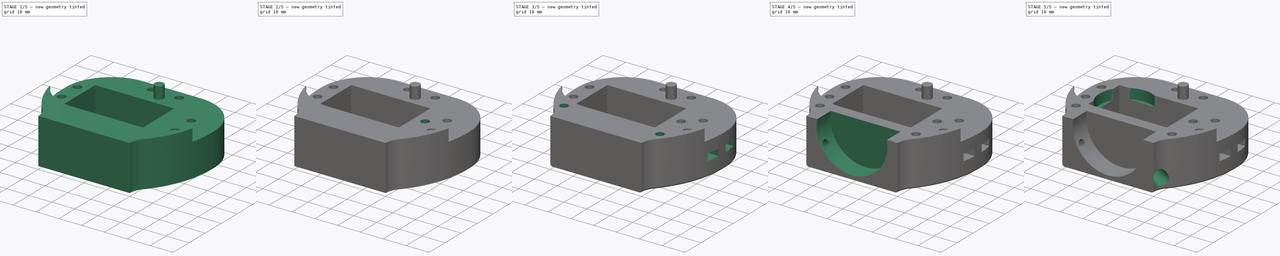
[diagram: build sequence overview — one tinted view per stage of 5, left to right]
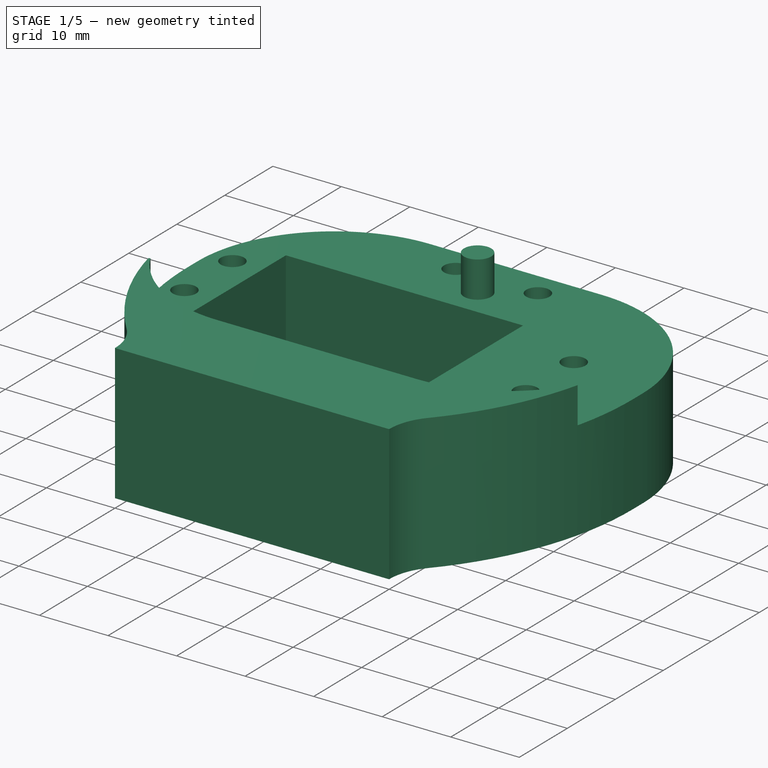
[diagram: stage 1 of 5 — iso view after this stage's code; geometry added in this stage tinted green]
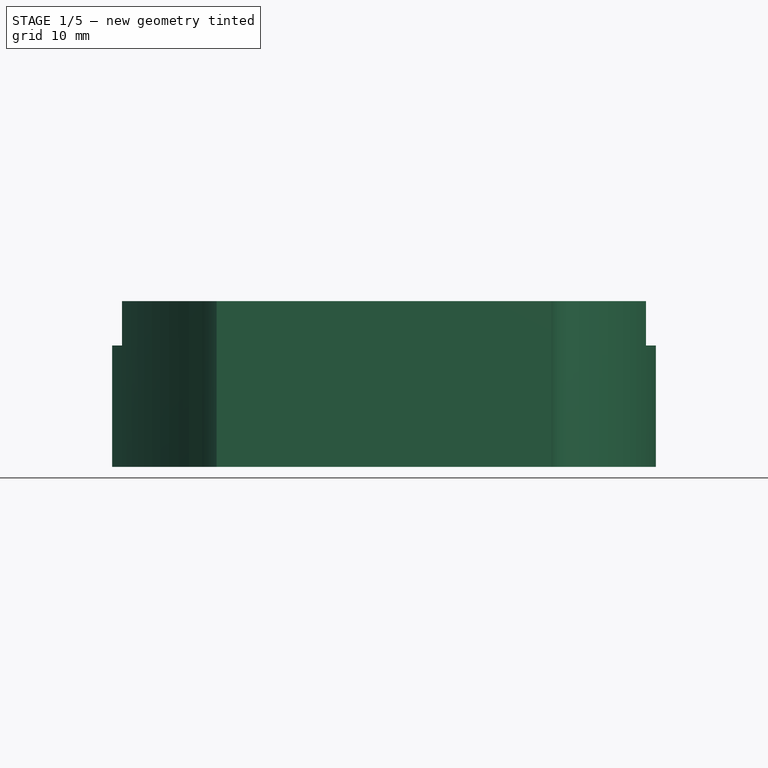
[diagram: stage 1 of 5 — front view after this stage's code; geometry added in this stage tinted green]
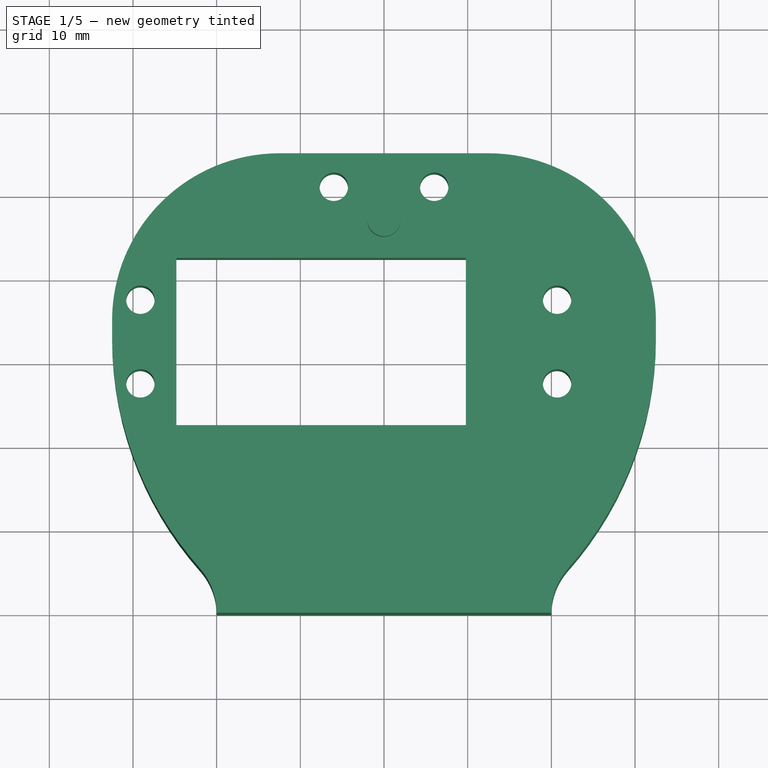
[diagram: stage 1 of 5 — top view after this stage's code; geometry added in this stage tinted green]
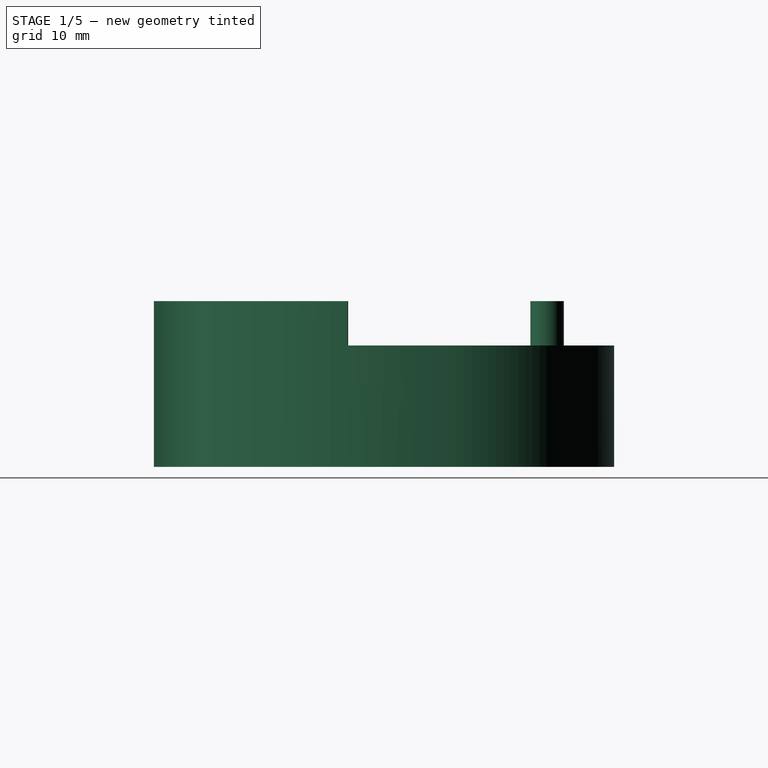
[diagram: stage 1 of 5 — right view after this stage's code; geometry added in this stage tinted green]
FCSTD DOCUMENT  (FreeCAD 0.19R24276 (Git))
Label: GripperBot
License: All rights reserved
LicenseURL: http://en.wikipedia.org/wiki/All_rights_reserved
objects: Sketcher::SketchObject×13, PartDesign::Pocket×12, PartDesign::Line×11, PartDesign::CoordinateSystem×6, PartDesign::Plane×3, Spreadsheet::Sheet×1, PartDesign::Pad×1, PartDesign::Chamfer×1, PartDesign::Fillet×1, PartDesign::Mirrored×1, PartDesign::Body×1
note: 65 computed .brp shape members not serialized (recipe doc carries the construction recipe); baked Part::Feature solids carry a one-line shape summary decoded from their .brp

FEATURE [Sketcher::SketchObject] Sketch
  FullyConstrained = true
  MapMode = 5
  Support = -> [XY_Plane]
  expr: Constraints[32] = Spreadsheet.M3BoltBodyRadius
  sketch-geometry (20):
    g0: LineSegment StartX=-20 StartY=0 StartZ=0 EndX=20 EndY=1e-15 EndZ=0
    g1: LineSegment StartX=-24.815 StartY=42.5 StartZ=0 EndX=9.785 EndY=42.5 EndZ=0
    g2: LineSegment StartX=9.785 StartY=42.5 StartZ=0 EndX=9.785 EndY=22.5 EndZ=0
    g3: LineSegment StartX=9.785 StartY=22.5 StartZ=0 EndX=-24.815 EndY=22.5 EndZ=0
    g4: LineSegment StartX=-24.815 StartY=22.5 StartZ=0 EndX=-24.815 EndY=42.5 EndZ=0
    g5: ArcOfCircle CenterX=27.9696 CenterY=0 CenterZ=0 NormalX=0 NormalY=0 NormalZ=1 AngleXU=0 Radius=7.9696 StartAngle=2.41742 EndAngle=3.14159
    g6: ArcOfCircle CenterX=-27.9696 CenterY=0 CenterZ=0 NormalX=0 NormalY=0 NormalZ=1 AngleXU=0 Radius=7.9696 StartAngle=0 EndAngle=0.724175
    g7: Circle CenterX=-29.115 CenterY=37.5 CenterZ=0 NormalX=0 NormalY=0 NormalZ=1 AngleXU=0 Radius=1.7
    g8: Circle CenterX=-29.115 CenterY=27.5 CenterZ=0 NormalX=0 NormalY=0 NormalZ=1 AngleXU=0 Radius=1.7
    g9: Circle CenterX=20.685 CenterY=37.5 CenterZ=0 NormalX=0 NormalY=0 NormalZ=1 AngleXU=0 Radius=1.7
    g10: Circle CenterX=20.685 CenterY=27.5 CenterZ=0 NormalX=0 NormalY=0 NormalZ=1 AngleXU=0 Radius=1.7
    g11: Circle CenterX=-6 CenterY=51 CenterZ=0 NormalX=0 NormalY=0 NormalZ=1 AngleXU=0 Radius=1.7
    g12: Circle CenterX=6 CenterY=51 CenterZ=0 NormalX=0 NormalY=0 NormalZ=1 AngleXU=0 Radius=1.7
    g13: LineSegment StartX=-12.5 StartY=55 StartZ=0 EndX=12.5 EndY=55 EndZ=0
    g14: ArcOfCircle CenterX=12.5 CenterY=35 CenterZ=0 NormalX=0 NormalY=0 NormalZ=1 AngleXU=0 Radius=20 StartAngle=0 EndAngle=1.5708
    g15: LineSegment StartX=32.5 StartY=35 StartZ=0 EndX=32.5 EndY=33 EndZ=0
    g16: ArcOfCircle CenterX=-9.3404 CenterY=33 CenterZ=0 NormalX=0 NormalY=0 NormalZ=1 AngleXU=0 Radius=41.8404 StartAngle=5.55901 EndAngle=6.28319
    g17: LineSegment StartX=-32.5 StartY=35 StartZ=0 EndX=-32.5 EndY=33 EndZ=0
    g18: ArcOfCircle CenterX=-12.5 CenterY=35 CenterZ=0 NormalX=0 NormalY=0 NormalZ=1 AngleXU=0 Radius=20 StartAngle=1.5708 EndAngle=3.14159
    g19: ArcOfCircle CenterX=9.3404 CenterY=33 CenterZ=0 NormalX=0 NormalY=0 NormalZ=1 AngleXU=0 Radius=41.8404 StartAngle=3.14159 EndAngle=3.86577
  constraints (56):
    c: PointOnObject(g0,g-1)
    c: Symmetric(g0,g0,g-2)
    c: Coincident(g1,g2)
    c: Coincident(g2,g3)
    c: Coincident(g3,g4)
    c: Coincident(g4,g1)
    c: Horizontal(g1)
    c: Horizontal(g3)
    c: Vertical(g2)
    c: Vertical(g4)
    c: DistanceY(g-1,g2) = 22.5
    c: DistanceX(g3,g3) = 34.6
    c: DistanceX(g-1,g2) = 9.785
    c: DistanceY(g2,g2) = 20
    c: PointOnObject(g5,g-1)
    c: Coincident(g5,g0)
    c: PointOnObject(g6,g-1)
    c: Coincident(g6,g0)
    c: Equal(g11,g12)
    c: Equal(g12,g9)
    c: Equal(g9,g10)
    c: Equal(g10,g8)
    c: Equal(g8,g7)
    c: DistanceX(g7,g8) = 0
    c: DistanceX(g9,g10) = 0
    c: Symmetric(g11,g12,g-2)
    c: DistanceX(g11,g12) = 12
    c: DistanceY(g8,g7) = 10
    c: DistanceY(g10,g9) = 10
    c: DistanceX(g8,g10) = 49.8
    c: DistanceY(g3,g8) = 5
    c: DistanceY(g2,g10) = 5
    c: Radius(g8) = 1.7
    c: Horizontal(g13)
    c: DistanceY(g12,g13) = 4
    c: Radius(g14) = 20
    c: Tangent(g14,g13) = 1.5708
    c: DistanceX(g0,g0) = 40
    c: Vertical(g15)
    c: Tangent(g15,g14) = 1.5708
    c: Tangent(g16,g5) = 1.5708
    c: Tangent(g16,g15) = 1.5708
    c: DistanceY(g15,g15) = 2
    c: Vertical(g17)
    c: Equal(g17,g15)
    c: Equal(g18,g14)
    c: Coincident(g18,g13)
    c: Symmetric(g18,g14,g-2)
    c: Tangent(g18,g17) = -1.5708
    c: Tangent(g19,g6) = 1.5708
    c: Tangent(g19,g17) = -1.5708
    c: Equal(g6,g5)
    c: DistanceX(g6,g-1) = 22
    c: DistanceX(g17,g14) = 65
    c: DistanceY(g-1,g13) = 55
    c: DistanceX(g8,g3) = 4.3
FEATURE [Spreadsheet::Sheet] Spreadsheet
  cells = A2=M3BoltBodyRadius; B2(M3BoltBodyRadius)=1.7; A3=M3BoltHeadRadius; B3(M3BoltHeadRadius)=2.95; A4=M3NutCircumradius; B4(M3NutCircumradius)=3.35; A5=M3NutThickness; B5(M3NutThickness)=3; A6=Bearing655ZZBodyRadius; B6(Bearing655ZZBodyRadius)=8.199999999999999
FEATURE [PartDesign::Pad] Pad
  Direction = (1,1,1)
  Length = 19.8
  Length2 = 100
  Profile = -> Sketch
  Refine = true
  Type = 0
FEATURE [Sketcher::SketchObject] Sketch001
  FullyConstrained = true
  MapMode = 5
  Placement = pos=(0,0,19.8) rot=(0,0,1;0rad)
  Support = -> [Pad]
  sketch-geometry (5):
    g0: ArcOfCircle CenterX=-14.5 CenterY=32.5 CenterZ=0 NormalX=0 NormalY=0 NormalZ=1 AngleXU=0 Radius=19 StartAngle=3.12167 EndAngle=4.71239
    g1: ArcOfCircle CenterX=14.5 CenterY=32.5 CenterZ=0 NormalX=0 NormalY=0 NormalZ=1 AngleXU=0 Radius=19 StartAngle=4.71239 EndAngle=6.30311
    g2: ArcOfCircle CenterX=0 CenterY=70 CenterZ=0 NormalX=0 NormalY=0 NormalZ=1 AngleXU=0 Radius=50 StartAngle=5.4465 EndAngle=10.2615
    g3: LineSegment StartX=-14.5 StartY=13.5 StartZ=0 EndX=14.5 EndY=13.5 EndZ=0
    g4: Circle CenterX=0 CenterY=47 CenterZ=0 NormalX=0 NormalY=0 NormalZ=1 AngleXU=0 Radius=2
  constraints (15):
    c: PointOnObject(g2,g-2)
    c: Coincident(g2,g0)
    c: Coincident(g2,g1)
    c: Symmetric(g0,g1,g-2)
    c: Horizontal(g3)
    c: Tangent(g3,g1) = -1.5708
    c: Tangent(g3,g0) = -1.5708
    c: Radius(g1) = 19
    c: PointOnObject(g4,g-2)
    c: Radius(g4) = 2
    c: DistanceY(g-1,g4) = 47
    c: DistanceX(g-1,g1) = 14.5
    c: Radius(g2) = 50
    c: DistanceY(g-1,g1) = 32.5
    c: DistanceY(g-1,g2) = 70
FEATURE [PartDesign::Pocket] Pocket
  BaseFeature = -> Pad
  Length = 5.3
  Length2 = 100
  Profile = -> Sketch001
  Refine = true
  Type = 0
FEATURE [PartDesign::Chamfer] Chamfer
  Angle = 45
  Base = -> Pocket [Edge56,Edge48]
  BaseFeature = -> Pocket
  ChamferType = 0
  FlipDirection = false
  Refine = true
  Size = 1
  Size2 = 1
  SupportTransform = false
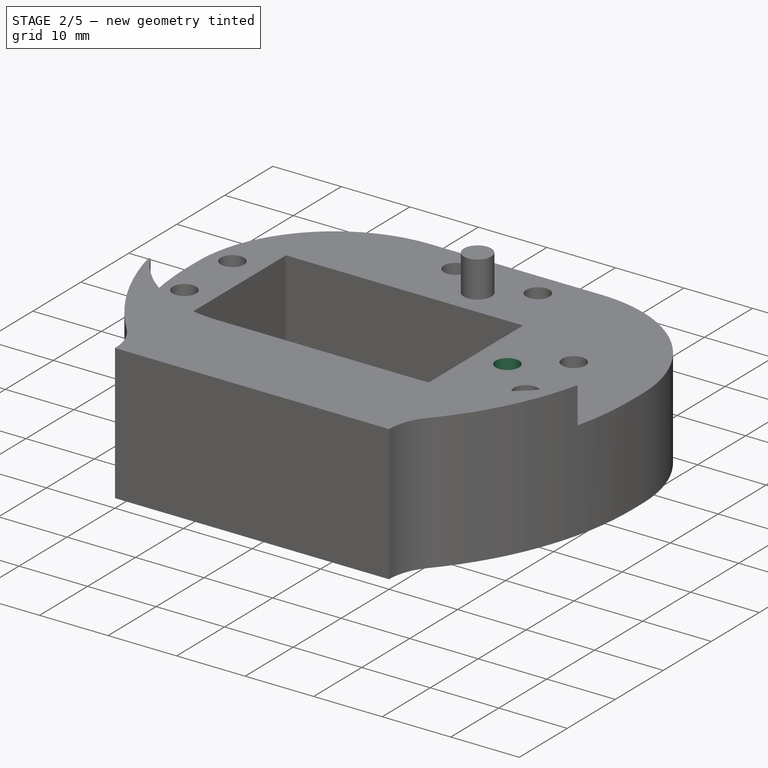
[diagram: stage 2 of 5 — iso view after this stage's code; geometry added in this stage tinted green]
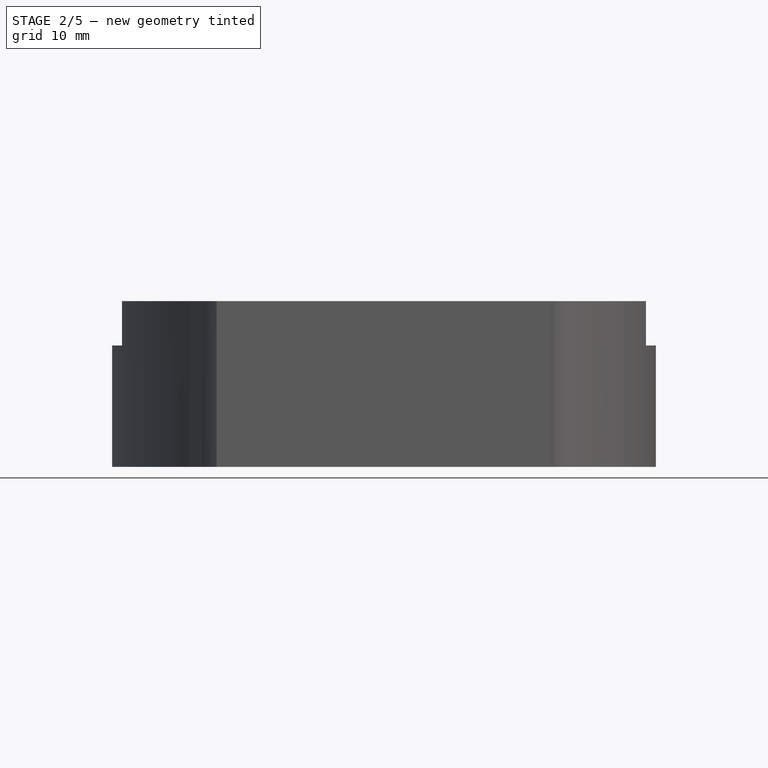
[diagram: stage 2 of 5 — front view after this stage's code; geometry added in this stage tinted green]
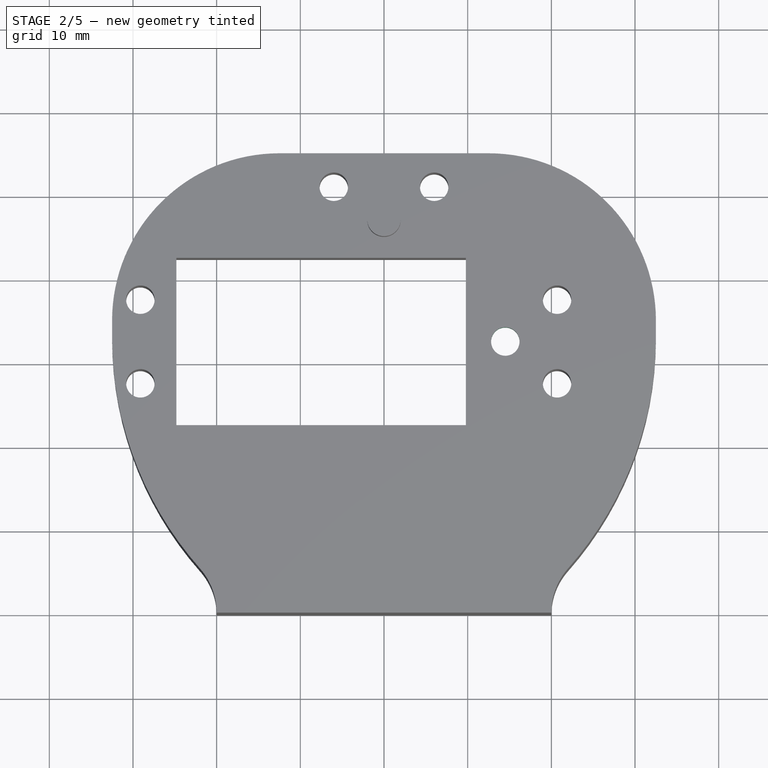
[diagram: stage 2 of 5 — top view after this stage's code; geometry added in this stage tinted green]
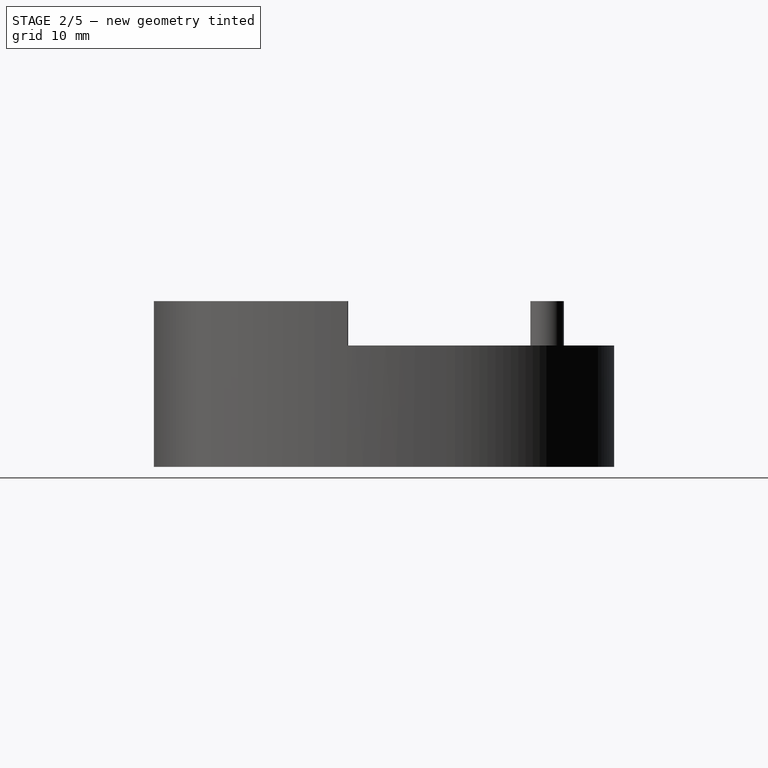
[diagram: stage 2 of 5 — right view after this stage's code; geometry added in this stage tinted green]
FEATURE [Sketcher::SketchObject] Sketch002
  ExternalGeometry = -> [Chamfer]
  FullyConstrained = true
  MapMode = 5
  Placement = pos=(0,0,0) rot=(1,0,0;3.14159rad)
  Support = -> [Chamfer]
  sketch-geometry (4):
    g0: LineSegment StartX=9.785 StartY=-22.5 StartZ=0 EndX=16.185 EndY=-22.5 EndZ=0
    g1: LineSegment StartX=16.185 StartY=-22.5 StartZ=0 EndX=16.185 EndY=-42.5 EndZ=0
    g2: LineSegment StartX=16.185 StartY=-42.5 StartZ=0 EndX=9.785 EndY=-42.5 EndZ=0
    g3: LineSegment StartX=9.785 StartY=-42.5 StartZ=0 EndX=9.785 EndY=-22.5 EndZ=0
  constraints (10):
    c: Coincident(g0,g1)
    c: Coincident(g1,g2)
    c: Coincident(g2,g3)
    c: Coincident(g3,g0)
    c: Horizontal(g0)
    c: Horizontal(g2)
    c: Vertical(g1)
    c: Coincident(g0,g-3)
    c: Coincident(g2,g-3)
    c: DistanceX(g2,g2) = 6.4
FEATURE [PartDesign::Pocket] Pocket001
  BaseFeature = -> Chamfer
  Length = 7.5
  Length2 = 100
  Profile = -> Sketch002
  Refine = true
  Type = 0
FEATURE [Sketcher::SketchObject] Sketch003
  ExternalGeometry = -> [Pocket001]
  FullyConstrained = true
  MapMode = 5
  Placement = pos=(0,0,14.5) rot=(0,0,1;0rad)
  Support = -> [Pocket001]
  expr: Constraints[2] = Spreadsheet.M3BoltBodyRadius
  sketch-geometry (1):
    g0: Circle CenterX=14.5 CenterY=32.5 CenterZ=0 NormalX=0 NormalY=0 NormalZ=1 AngleXU=0 Radius=1.7
  constraints (3):
    c: DistanceX(g0,g-3) = 6.185
    c: DistanceY(g0,g-3) = 5
    c: Radius(g0) = 1.7
FEATURE [PartDesign::Pocket] Pocket002
  BaseFeature = -> Pocket001
  Length = 5
  Length2 = 100
  Profile = -> Sketch003
  Refine = true
  Type = 1
FEATURE [Sketcher::SketchObject] Sketch004
  ExternalGeometry = -> [Pocket002]
  FullyConstrained = true
  MapMode = 5
  Placement = pos=(0,0,0) rot=(1,0,0;3.14159rad)
  Support = -> [Pocket002]
  expr: Constraints[18] = Spreadsheet.M3NutCircumradius
  sketch-geometry (7):
    g0: LineSegment StartX=14.5 StartY=-35.85 StartZ=0 EndX=17.4012 EndY=-34.175 EndZ=0
    g1: LineSegment StartX=17.4012 StartY=-34.175 StartZ=0 EndX=17.4012 EndY=-30.825 EndZ=0
    g2: LineSegment StartX=17.4012 StartY=-30.825 StartZ=0 EndX=14.5 EndY=-29.15 EndZ=0
    g3: LineSegment StartX=14.5 StartY=-29.15 StartZ=0 EndX=11.5988 EndY=-30.825 EndZ=0
    g4: LineSegment StartX=11.5988 StartY=-30.825 StartZ=0 EndX=11.5988 EndY=-34.175 EndZ=0
    g5: LineSegment StartX=11.5988 StartY=-34.175 StartZ=0 EndX=14.5 EndY=-35.85 EndZ=0
    g6: Circle CenterX=14.5 CenterY=-32.5 CenterZ=0 NormalX=0 NormalY=0 NormalZ=1 AngleXU=0 Radius=3.35
  constraints (16):
    c: Coincident(g0,g1)
    c: Coincident(g1,g2)
    c: Coincident(g2,g3)
    c: Coincident(g3,g4)
    c: Coincident(g4,g5)
    c: Coincident(g5,g0)
    c: Equal(g0, g1-g5) x5
    c: PointOnObject(g0,g6)
    c: PointOnObject(g1,g6)
    c: PointOnObject(g2,g6)
    c: PointOnObject(g3,g6)
    c: PointOnObject(g4,g6)
    c: PointOnObject(g5,g6)
    c: Coincident(g6,g-3)
    c: Radius(g6) = 3.35
    c: Vertical(g4)
FEATURE [PartDesign::Pocket] Pocket003
  BaseFeature = -> Pocket002
  Length = 11.7
  Length2 = 100
  Profile = -> Sketch004
  Refine = true
  Type = 0
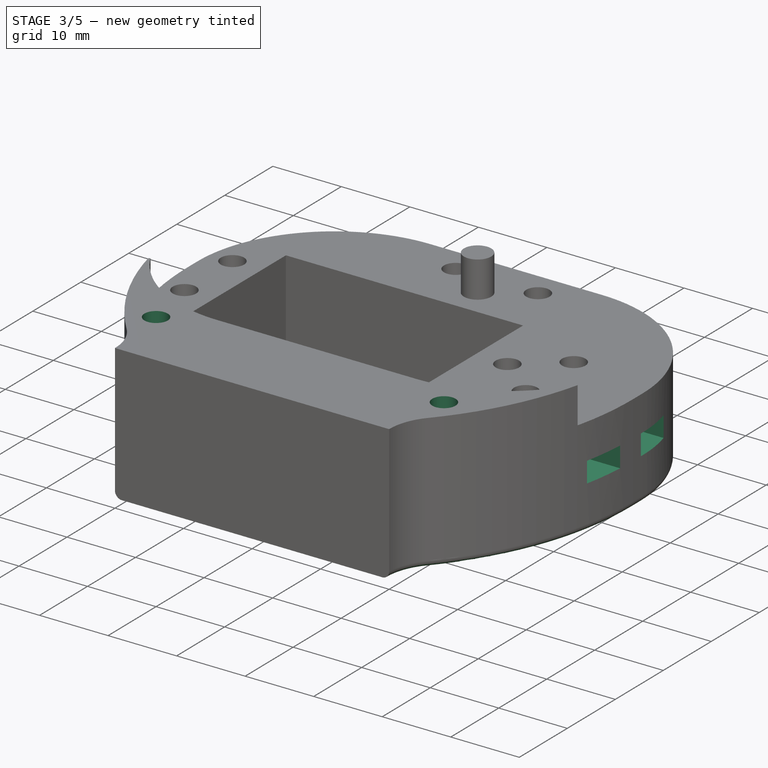
[diagram: stage 3 of 5 — iso view after this stage's code; geometry added in this stage tinted green]
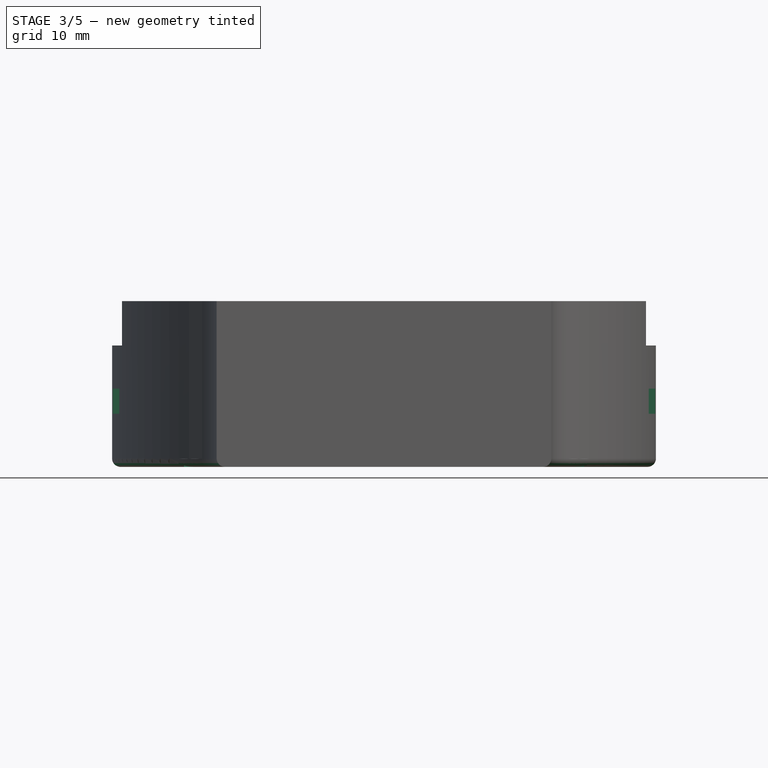
[diagram: stage 3 of 5 — front view after this stage's code; geometry added in this stage tinted green]
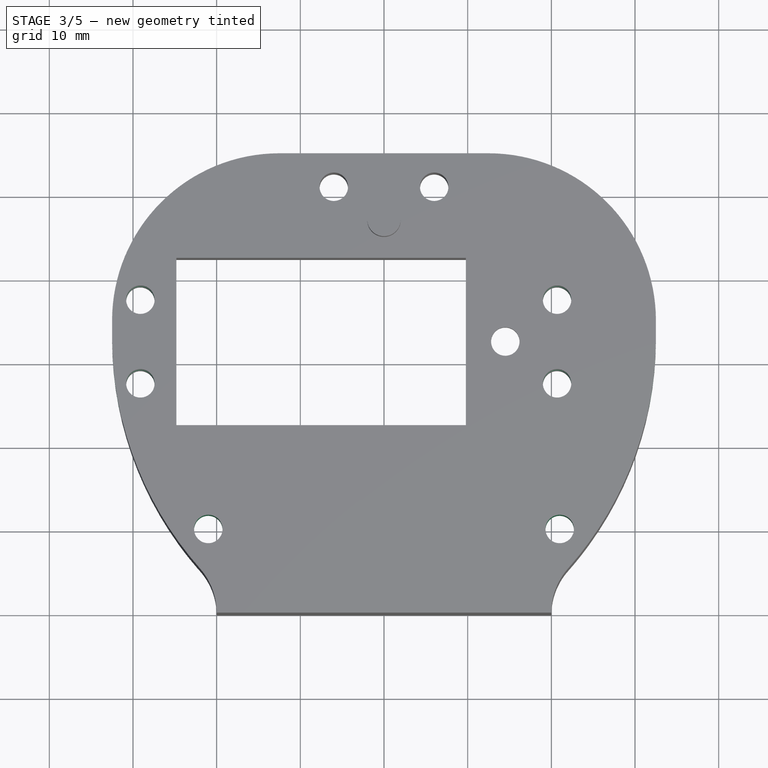
[diagram: stage 3 of 5 — top view after this stage's code; geometry added in this stage tinted green]
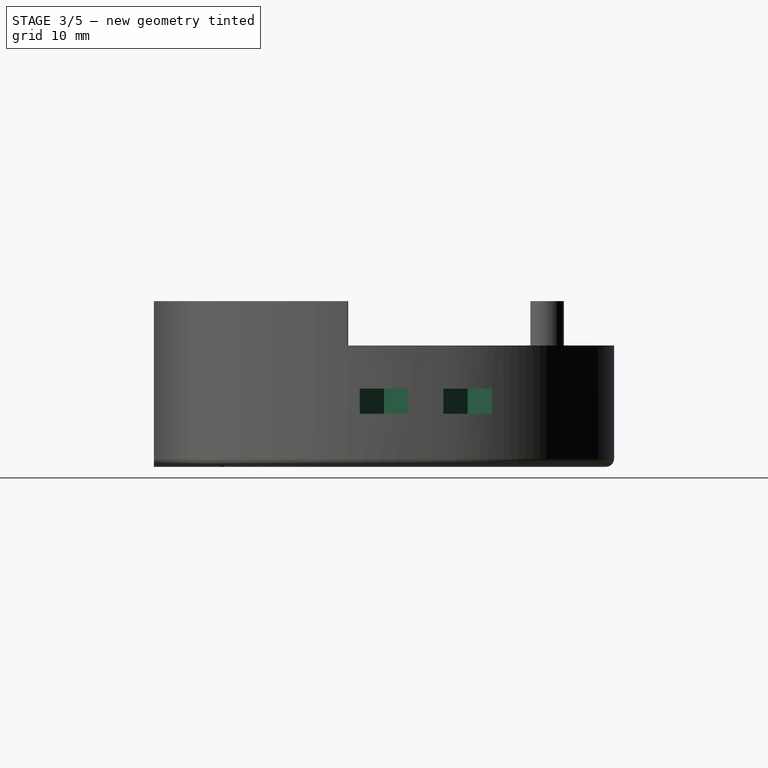
[diagram: stage 3 of 5 — right view after this stage's code; geometry added in this stage tinted green]
FEATURE [PartDesign::Plane] DatumPlane
  AttachmentOffset = pos=(0,0,-7.85) rot=(0,0,1;0rad)
  Length = 60
  MapMode = 5
  Placement = pos=(0,0,7.85) rot=(1,0,0;3.14159rad)
  ResizeMode = 0
  Support = -> [Pocket003]
  Width = 60
FEATURE [Sketcher::SketchObject] Sketch005
  ExternalGeometry = -> [Pocket003]
  FullyConstrained = true
  MapMode = 5
  Placement = pos=(0,0,7.85) rot=(1,0,0;3.14159rad)
  Support = -> [DatumPlane]
  expr: Constraints[79] = Spreadsheet.M3NutCircumradius
  sketch-geometry (40):
    g0: LineSegment StartX=24.035 StartY=-27.5 StartZ=0 EndX=22.36 EndY=-24.5988 EndZ=0
    g1: LineSegment StartX=22.36 StartY=-24.5988 StartZ=0 EndX=19.01 EndY=-24.5988 EndZ=0
    g2: LineSegment StartX=19.01 StartY=-24.5988 StartZ=0 EndX=17.335 EndY=-27.5 EndZ=0
    g3: LineSegment StartX=17.335 StartY=-27.5 StartZ=0 EndX=19.01 EndY=-30.4012 EndZ=0
    g4: LineSegment StartX=19.01 StartY=-30.4012 StartZ=0 EndX=22.36 EndY=-30.4012 EndZ=0
    g5: LineSegment StartX=22.36 StartY=-30.4012 StartZ=0 EndX=24.035 EndY=-27.5 EndZ=0
    g6: Circle CenterX=20.685 CenterY=-27.5 CenterZ=0 NormalX=0 NormalY=0 NormalZ=1 AngleXU=0 Radius=3.35
    g7: LineSegment StartX=19.01 StartY=-34.5988 StartZ=0 EndX=17.335 EndY=-37.5 EndZ=0
    g8: LineSegment StartX=17.335 StartY=-37.5 StartZ=0 EndX=19.01 EndY=-40.4012 EndZ=0
    g9: LineSegment StartX=19.01 StartY=-40.4012 StartZ=0 EndX=22.36 EndY=-40.4012 EndZ=0
    g10: LineSegment StartX=22.36 StartY=-40.4012 StartZ=0 EndX=24.035 EndY=-37.5 EndZ=0
    g11: LineSegment StartX=24.035 StartY=-37.5 StartZ=0 EndX=22.36 EndY=-34.5988 EndZ=0
    g12: LineSegment StartX=22.36 StartY=-34.5988 StartZ=0 EndX=19.01 EndY=-34.5988 EndZ=0
    g13: Circle CenterX=20.685 CenterY=-37.5 CenterZ=0 NormalX=0 NormalY=0 NormalZ=1 AngleXU=0 Radius=3.35
    g14: LineSegment StartX=-25.765 StartY=-37.5 StartZ=0 EndX=-27.44 EndY=-34.5988 EndZ=0
    g15: LineSegment StartX=-27.44 StartY=-34.5988 StartZ=0 EndX=-30.79 EndY=-34.5988 EndZ=0
    g16: LineSegment StartX=-30.79 StartY=-34.5988 StartZ=0 EndX=-32.465 EndY=-37.5 EndZ=0
    g17: LineSegment StartX=-32.465 StartY=-37.5 StartZ=0 EndX=-30.79 EndY=-40.4012 EndZ=0
    g18: LineSegment StartX=-30.79 StartY=-40.4012 StartZ=0 EndX=-27.44 EndY=-40.4012 EndZ=0
    g19: LineSegment StartX=-27.44 StartY=-40.4012 StartZ=0 EndX=-25.765 EndY=-37.5 EndZ=0
    g20: Circle CenterX=-29.115 CenterY=-37.5 CenterZ=0 NormalX=0 NormalY=0 NormalZ=1 AngleXU=0 Radius=3.35
    g21: LineSegment StartX=-25.765 StartY=-27.5 StartZ=0 EndX=-27.44 EndY=-24.5988 EndZ=0
    g22: LineSegment StartX=-27.44 StartY=-24.5988 StartZ=0 EndX=-30.79 EndY=-24.5988 EndZ=0
    g23: LineSegment StartX=-30.79 StartY=-24.5988 StartZ=0 EndX=-32.465 EndY=-27.5 EndZ=0
    g24: LineSegment StartX=-32.465 StartY=-27.5 StartZ=0 EndX=-30.79 EndY=-30.4012 EndZ=0
    g25: LineSegment StartX=-30.79 StartY=-30.4012 StartZ=0 EndX=-27.44 EndY=-30.4012 EndZ=0
    g26: LineSegment StartX=-27.44 StartY=-30.4012 StartZ=0 EndX=-25.765 EndY=-27.5 EndZ=0
    g27: Circle CenterX=-29.115 CenterY=-27.5 CenterZ=0 NormalX=0 NormalY=0 NormalZ=1 AngleXU=0 Radius=3.35
    g28: LineSegment StartX=19.01 StartY=-24.5988 StartZ=0 EndX=39.01 EndY=-24.5988 EndZ=0
    g29: LineSegment StartX=39.01 StartY=-24.5988 StartZ=0 EndX=39.01 EndY=-30.4012 EndZ=0
    g30: LineSegment StartX=39.01 StartY=-30.4012 StartZ=0 EndX=19.01 EndY=-30.4012 EndZ=0
    g31: LineSegment StartX=19.01 StartY=-34.5988 StartZ=0 EndX=39.01 EndY=-34.5988 EndZ=0
    g32: LineSegment StartX=39.01 StartY=-34.5988 StartZ=0 EndX=39.01 EndY=-40.4012 EndZ=0
    g33: LineSegment StartX=39.01 StartY=-40.4012 StartZ=0 EndX=19.01 EndY=-40.4012 EndZ=0
    g34: LineSegment StartX=-27.44 StartY=-40.4012 StartZ=0 EndX=-47.44 EndY=-40.4012 EndZ=0
    g35: LineSegment StartX=-47.44 StartY=-40.4012 StartZ=0 EndX=-47.44 EndY=-34.5988 EndZ=0
    g36: LineSegment StartX=-47.44 StartY=-34.5988 StartZ=0 EndX=-27.44 EndY=-34.5988 EndZ=0
    g37: LineSegment StartX=-27.44 StartY=-30.4012 StartZ=0 EndX=-47.44 EndY=-30.4012 EndZ=0
    g38: LineSegment StartX=-47.44 StartY=-30.4012 StartZ=0 EndX=-47.44 EndY=-24.5988 EndZ=0
    g39: LineSegment StartX=-47.44 StartY=-24.5988 StartZ=0 EndX=-27.44 EndY=-24.5988 EndZ=0
  constraints (96):
    c: Coincident(g0,g1)
    c: Coincident(g1,g2)
    c: Coincident(g2,g3)
    c: Coincident(g3,g4)
    c: Coincident(g4,g5)
    c: Coincident(g5,g0)
    c: Equal(g0, g1-g5) x5
    c: PointOnObject(g0,g6)
    c: PointOnObject(g1,g6)
    c: PointOnObject(g2,g6)
    c: PointOnObject(g3,g6)
    c: PointOnObject(g4,g6)
    c: PointOnObject(g5,g6)
    c: Coincident(g6,g-3)
    c: Coincident(g7,g8)
    c: Coincident(g8,g9)
    c: Coincident(g9,g10)
    c: Coincident(g10,g11)
    c: Coincident(g11,g12)
    c: Coincident(g12,g7)
    c: Equal(g7, g8-g12) x5
    c: PointOnObject(g7,g13)
    c: PointOnObject(g8,g13)
    c: PointOnObject(g9,g13)
    c: PointOnObject(g10,g13)
    c: PointOnObject(g11,g13)
    c: PointOnObject(g12,g13)
    c: Coincident(g13,g-4)
    c: Coincident(g14,g15)
    c: Coincident(g15,g16)
    c: Coincident(g16,g17)
    c: Coincident(g17,g18)
    c: Coincident(g18,g19)
    c: Coincident(g19,g14)
    c: Equal(g14, g15-g19) x5
    c: PointOnObject(g14,g20)
    c: PointOnObject(g15,g20)
    c: PointOnObject(g16,g20)
    c: PointOnObject(g17,g20)
    c: PointOnObject(g18,g20)
    c: PointOnObject(g19,g20)
    c: Coincident(g20,g-5)
    c: Coincident(g21,g22)
    c: Coincident(g22,g23)
    c: Coincident(g23,g24)
    c: Coincident(g24,g25)
    c: Coincident(g25,g26)
    c: Coincident(g26,g21)
    c: Equal(g21, g22-g26) x5
    c: PointOnObject(g21,g27)
    c: PointOnObject(g22,g27)
    c: PointOnObject(g23,g27)
    c: PointOnObject(g24,g27)
    c: PointOnObject(g25,g27)
    c: PointOnObject(g26,g27)
    c: Coincident(g27,g-6)
    c: Horizontal(g25)
    c: Horizontal(g15)
    c: Horizontal(g12)
    c: Horizontal(g4)
    c: Equal(g6,g13)
    c: Equal(g13,g27)
    c: Equal(g27,g20)
    c: Radius(g20) = 3.35
    c: Coincident(g2,g28)
    c: Horizontal(g28)
    c: Coincident(g28,g29)
    c: Vertical(g29)
    c: Coincident(g29,g30)
    c: Coincident(g30,g3)
    c: Horizontal(g30)
    c: Coincident(g7,g31)
    c: Horizontal(g31)
    c: Coincident(g31,g32)
    c: Vertical(g32)
    c: Coincident(g32,g33)
    c: Coincident(g33,g8)
    c: Horizontal(g33)
    c: Coincident(g19,g34)
    c: Horizontal(g34)
    c: Coincident(g34,g35)
    c: Vertical(g35)
    c: Coincident(g35,g36)
    c: Coincident(g36,g14)
    c: Horizontal(g36)
    c: Coincident(g26,g37)
    c: Horizontal(g37)
    c: Coincident(g37,g38)
    c: Vertical(g38)
    c: Coincident(g38,g39)
    c: Coincident(g39,g21)
    c: Horizontal(g39)
    c: Equal(g33,g30)
    c: Equal(g30,g34)
    c: Equal(g34,g37)
    c: DistanceX(g33,g33) = 20
FEATURE [PartDesign::Pocket] Pocket004
  BaseFeature = -> Pocket003
  Length = 3
  Length2 = 100
  Midplane = true
  Profile = -> Sketch005
  Refine = true
  Type = 0
  expr: Length = Spreadsheet.M3NutThickness
FEATURE [PartDesign::Fillet] Fillet
  Base = -> Pocket004 [Edge36]
  BaseFeature = -> Pocket004
  Radius = 1
  Refine = true
  SupportTransform = false
FEATURE [Sketcher::SketchObject] Sketch006
  FullyConstrained = true
  MapMode = 5
  Placement = pos=(0,0,19.8) rot=(0,0,1;0rad)
  Support = -> [Fillet]
  expr: Constraints[2] = Spreadsheet.M3BoltBodyRadius
  sketch-geometry (2):
    g0: Circle CenterX=-21 CenterY=10 CenterZ=0 NormalX=0 NormalY=0 NormalZ=1 AngleXU=0 Radius=1.7
    g1: Circle CenterX=21 CenterY=10 CenterZ=0 NormalX=0 NormalY=0 NormalZ=1 AngleXU=0 Radius=1.7
  constraints (5):
    c: Equal(g1,g0)
    c: Symmetric(g0,g1,g-2)
    c: Radius(g0) = 1.7
    c: DistanceY(g-1,g0) = 10
    c: DistanceX(g0,g1) = 42
FEATURE [PartDesign::Pocket] Pocket005
  BaseFeature = -> Fillet
  Length = 5
  Length2 = 100
  Profile = -> Sketch006
  Refine = true
  Type = 1
FEATURE [Sketcher::SketchObject] Sketch007
  ExternalGeometry = -> [Pocket005]
  FullyConstrained = true
  MapMode = 5
  Placement = pos=(0,0,0) rot=(1,0,0;3.14159rad)
  Support = -> [Pocket005]
  expr: Constraints[39] = Spreadsheet.M3NutCircumradius
  sketch-geometry (14):
    g0: LineSegment StartX=-21 StartY=-13.35 StartZ=0 EndX=-18.0988 EndY=-11.675 EndZ=0
    g1: LineSegment StartX=-18.0988 StartY=-11.675 StartZ=0 EndX=-18.0988 EndY=-8.325 EndZ=0
    g2: LineSegment StartX=-18.0988 StartY=-8.325 StartZ=0 EndX=-21 EndY=-6.65 EndZ=0
    g3: LineSegment StartX=-21 StartY=-6.65 StartZ=0 EndX=-23.9012 EndY=-8.325 EndZ=0
    g4: LineSegment StartX=-23.9012 StartY=-8.325 StartZ=0 EndX=-23.9012 EndY=-11.675 EndZ=0
    g5: LineSegment StartX=-23.9012 StartY=-11.675 StartZ=0 EndX=-21 EndY=-13.35 EndZ=0
    g6: Circle CenterX=-21 CenterY=-10 CenterZ=0 NormalX=0 NormalY=0 NormalZ=1 AngleXU=0 Radius=3.35
    g7: LineSegment StartX=21 StartY=-13.35 StartZ=0 EndX=23.9012 EndY=-11.675 EndZ=0
    g8: LineSegment StartX=23.9012 StartY=-11.675 StartZ=0 EndX=23.9012 EndY=-8.325 EndZ=0
    g9: LineSegment StartX=23.9012 StartY=-8.325 StartZ=0 EndX=21 EndY=-6.65 EndZ=0
    g10: LineSegment StartX=21 StartY=-6.65 StartZ=0 EndX=18.0988 EndY=-8.325 EndZ=0
    g11: LineSegment StartX=18.0988 StartY=-8.325 StartZ=0 EndX=18.0988 EndY=-11.675 EndZ=0
    g12: LineSegment StartX=18.0988 StartY=-11.675 StartZ=0 EndX=21 EndY=-13.35 EndZ=0
    g13: Circle CenterX=21 CenterY=-10 CenterZ=0 NormalX=0 NormalY=0 NormalZ=1 AngleXU=0 Radius=3.35
  constraints (32):
    c: Coincident(g0,g1)
    c: Coincident(g1,g2)
    c: Coincident(g2,g3)
    c: Coincident(g3,g4)
    c: Coincident(g4,g5)
    c: Coincident(g5,g0)
    c: Equal(g0, g1-g5) x5
    c: PointOnObject(g0,g6)
    c: PointOnObject(g1,g6)
    c: PointOnObject(g2,g6)
    c: PointOnObject(g3,g6)
    c: PointOnObject(g4,g6)
    c: PointOnObject(g5,g6)
    c: Coincident(g6,g-3)
    c: Coincident(g7,g8)
    c: Coincident(g8,g9)
    c: Coincident(g9,g10)
    c: Coincident(g10,g11)
    c: Coincident(g11,g12)
    c: Coincident(g12,g7)
    c: Equal(g7, g8-g12) x5
    c: PointOnObject(g7,g13)
    c: PointOnObject(g8,g13)
    c: PointOnObject(g9,g13)
    c: PointOnObject(g10,g13)
    c: PointOnObject(g11,g13)
    c: PointOnObject(g12,g13)
    c: Coincident(g13,g-4)
    c: Vertical(g11)
    c: Vertical(g1)
    c: Equal(g6,g13)
    c: Radius(g6) = 3.35
FEATURE [PartDesign::Pocket] Pocket006
  BaseFeature = -> Pocket005
  Length = 11.7
  Length2 = 100
  Profile = -> Sketch007
  Refine = true
  Type = 0
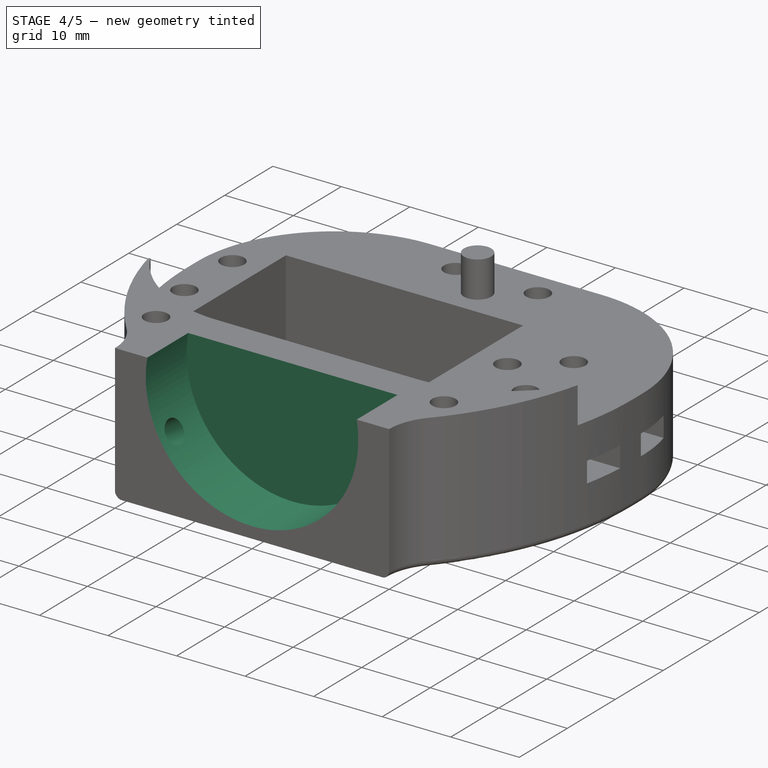
[diagram: stage 4 of 5 — iso view after this stage's code; geometry added in this stage tinted green]
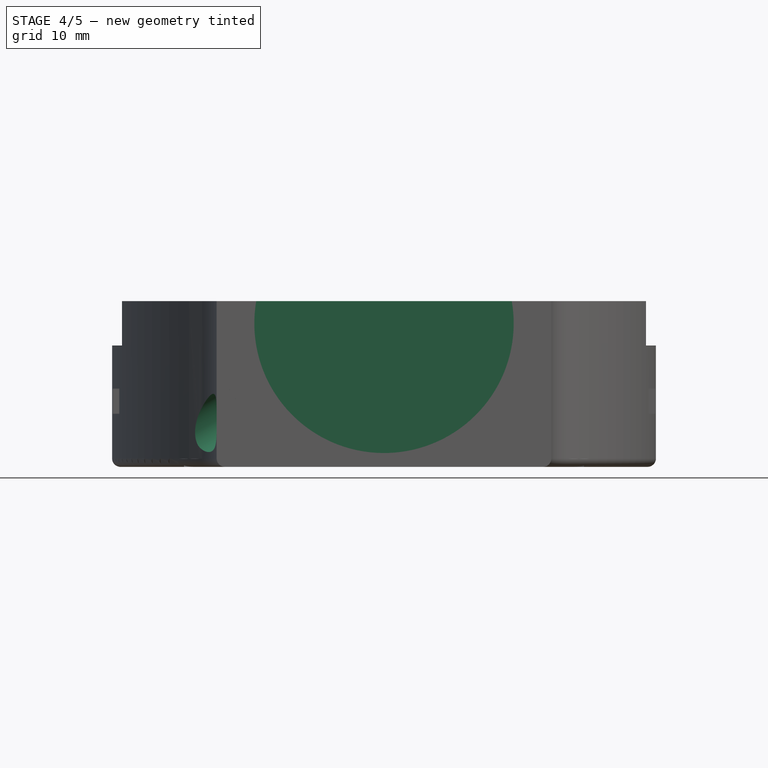
[diagram: stage 4 of 5 — front view after this stage's code; geometry added in this stage tinted green]
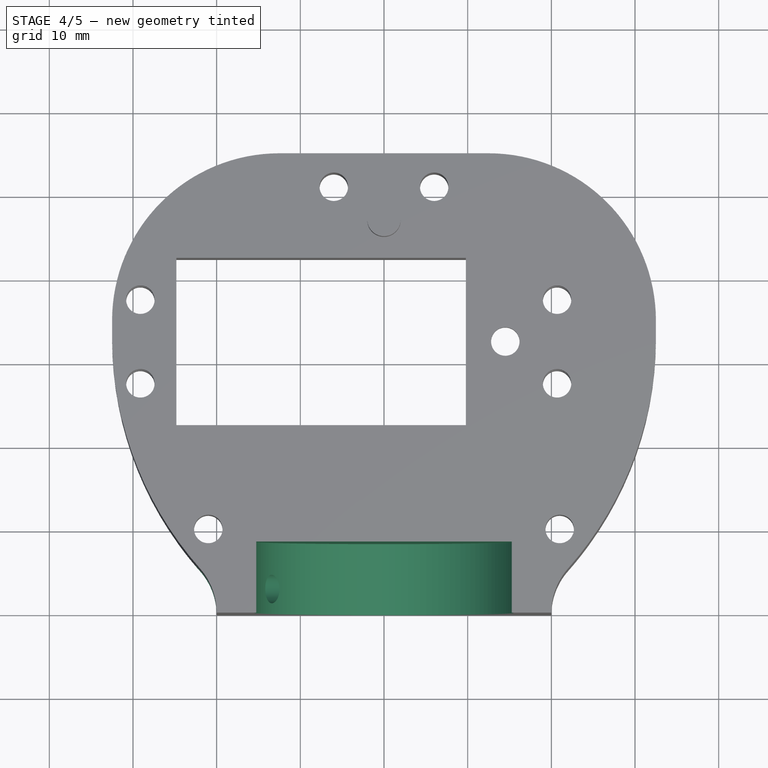
[diagram: stage 4 of 5 — top view after this stage's code; geometry added in this stage tinted green]
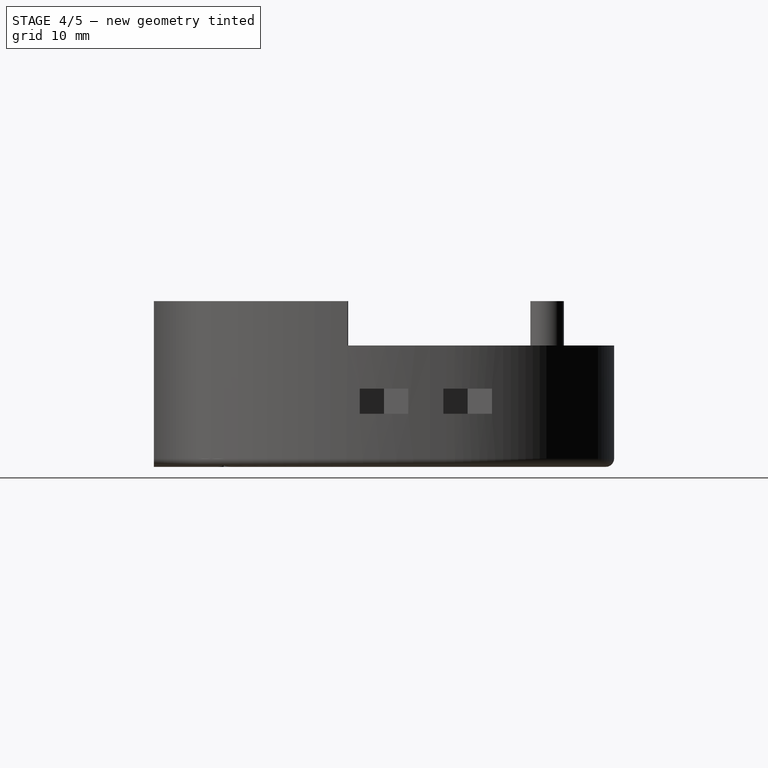
[diagram: stage 4 of 5 — right view after this stage's code; geometry added in this stage tinted green]
FEATURE [Sketcher::SketchObject] Sketch008
  FullyConstrained = true
  MapMode = 5
  Placement = pos=(0,4e-16,0) rot=(1,0,0;1.5708rad)
  Support = -> [Pocket006]
  sketch-geometry (1):
    g0: Circle CenterX=0 CenterY=17.15 CenterZ=0 NormalX=0 NormalY=0 NormalZ=1 AngleXU=0 Radius=15.5
  constraints (3):
    c: PointOnObject(g0,g-2)
    c: DistanceY(g-1,g0) = 17.15
    c: Radius(g0) = 15.5
FEATURE [PartDesign::Pocket] Pocket007
  BaseFeature = -> Pocket006
  Length = 8.5
  Length2 = 100
  Profile = -> Sketch008
  Refine = true
  Type = 0
FEATURE [PartDesign::Plane] DatumPlane001
  AttachmentOffset = pos=(0,0,-17.15) rot=(0,1,0;2.0944rad)
  Length = 79.989
  MapMode = 5
  Placement = pos=(0,0,17.15) rot=(0.5,0,0.866025;3.14159rad)
  ResizeMode = 0
  Support = -> [Pocket007]
  Width = 61.6877
FEATURE [Sketcher::SketchObject] Sketch009
  FullyConstrained = true
  MapMode = 5
  Placement = pos=(2.7e-15,0,17.15) rot=(0.5,0,0.866025;3.14159rad)
  Support = -> [DatumPlane001]
  expr: Constraints[0] = Spreadsheet.M3BoltBodyRadius
  sketch-geometry (1):
    g0: Circle CenterX=0 CenterY=-3 CenterZ=0 NormalX=0 NormalY=0 NormalZ=1 AngleXU=0 Radius=1.7
  constraints (3):
    c: Radius(g0) = 1.7
    c: PointOnObject(g0,g-2)
    c: DistanceY(g0,g-1) = 3
FEATURE [PartDesign::Pocket] Pocket008
  BaseFeature = -> Pocket007
  Length = 5
  Length2 = 100
  Profile = -> Sketch009
  Refine = true
  Type = 1
FEATURE [PartDesign::Plane] DatumPlane002
  AttachmentOffset = pos=(-23,0,-17.15) rot=(0,-1,0;1.0472rad)
  Length = 79.989
  MapMode = 5
  Placement = pos=(-23,0,17.15) rot=(0.866025,0,-0.5;3.14159rad)
  ResizeMode = 0
  Support = -> [Pocket008]
  Width = 61.6877
FEATURE [Sketcher::SketchObject] Sketch010
  ExternalGeometry = -> [Sketch009]
  FullyConstrained = true
  MapMode = 5
  Placement = pos=(-23,0,17.15) rot=(0.866025,0,-0.5;3.14159rad)
  Support = -> [DatumPlane002]
  expr: Constraints[1] = Spreadsheet.M3BoltHeadRadius
  sketch-geometry (1):
    g0: Circle CenterX=11.5 CenterY=-3 CenterZ=0 NormalX=0 NormalY=0 NormalZ=1 AngleXU=0 Radius=2.95
  constraints (2):
    c: Coincident(g0,g-3)
    c: Radius(g0) = 2.95
FEATURE [PartDesign::Pocket] Pocket009
  BaseFeature = -> Pocket008
  Length = 5
  Length2 = 100
  Profile = -> Sketch010
  Refine = true
  Reversed = true
  Type = 1
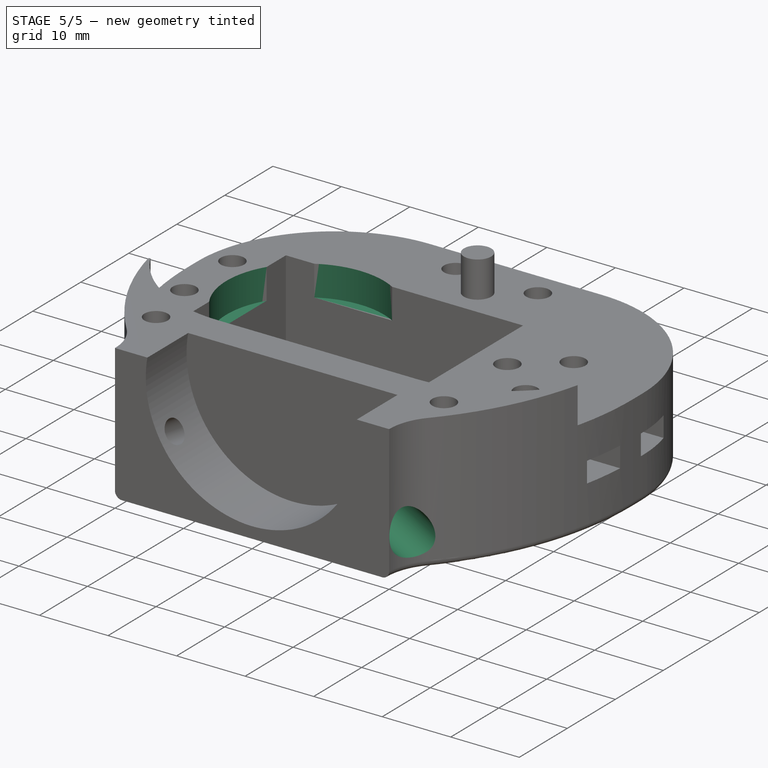
[diagram: stage 5 of 5 — iso view after this stage's code; geometry added in this stage tinted green]
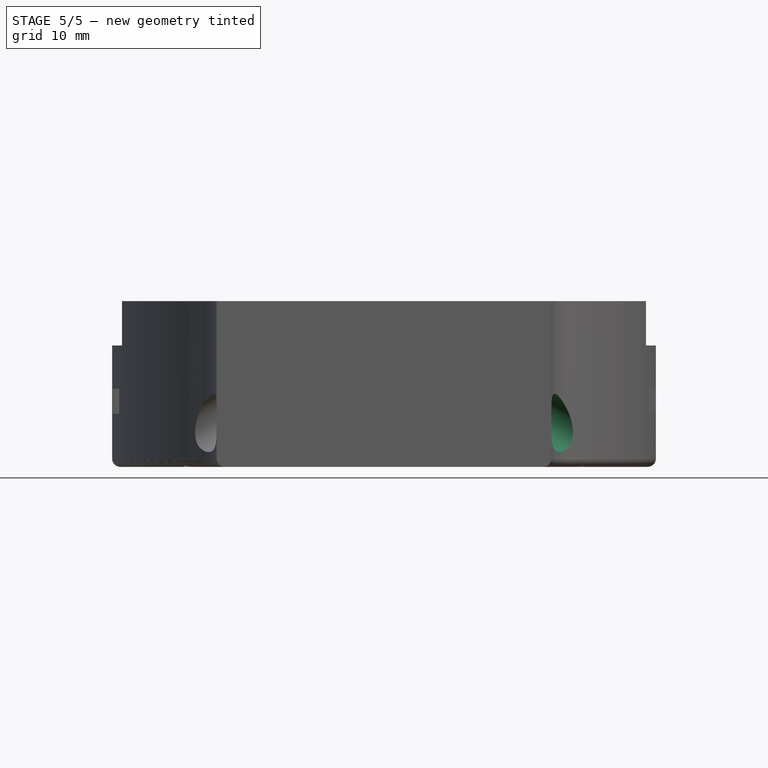
[diagram: stage 5 of 5 — front view after this stage's code; geometry added in this stage tinted green]
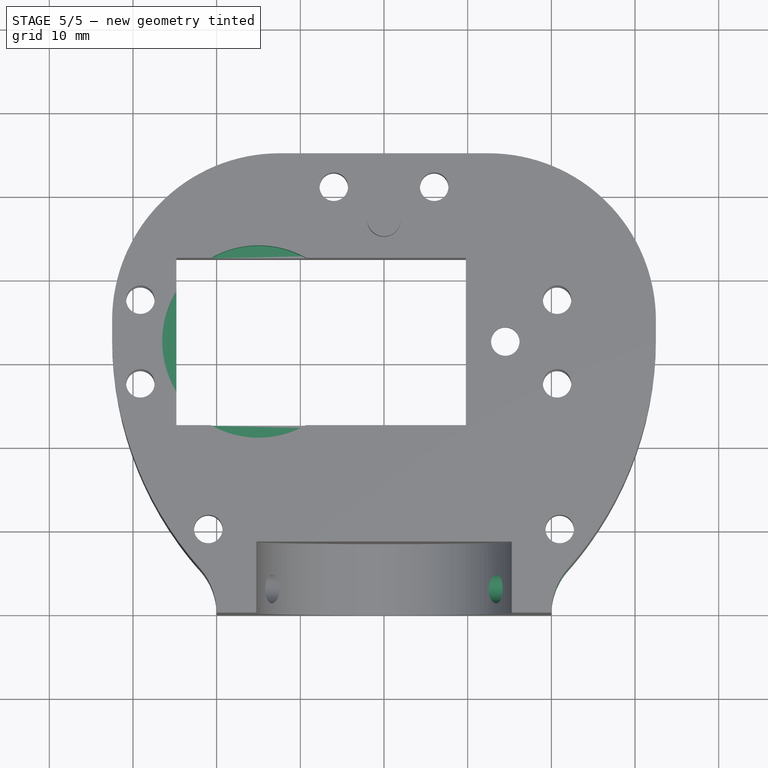
[diagram: stage 5 of 5 — top view after this stage's code; geometry added in this stage tinted green]
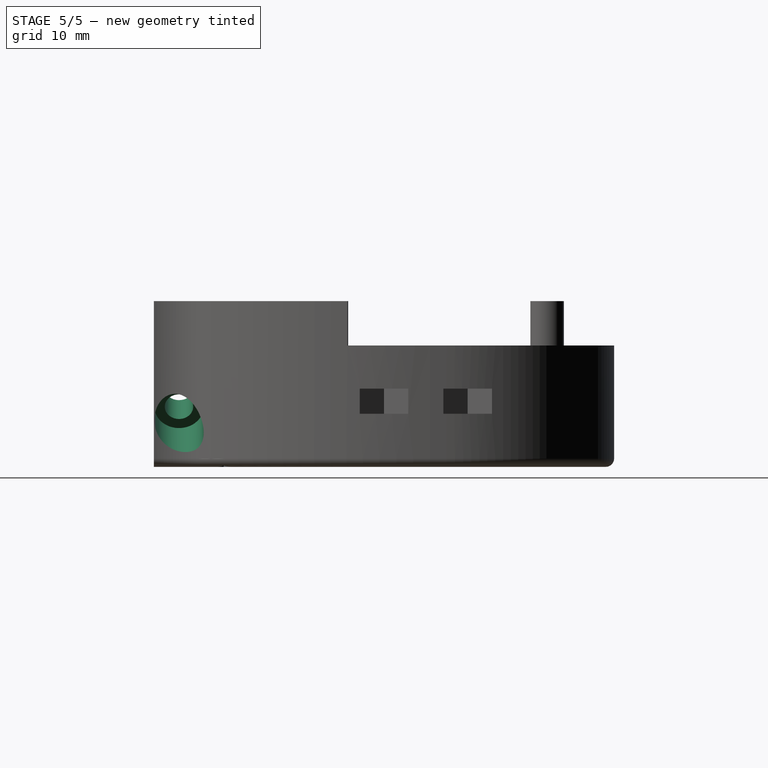
[diagram: stage 5 of 5 — right view after this stage's code; geometry added in this stage tinted green]
FEATURE [PartDesign::Mirrored] Mirrored
  BaseFeature = -> Pocket009
  MirrorPlane = -> YZ_Plane
  Originals = -> [Pocket008,Pocket009]
  Refine = true
FEATURE [Sketcher::SketchObject] Sketch011
  ExternalGeometry = -> [Mirrored]
  FullyConstrained = true
  MapMode = 5
  Placement = pos=(0,0,14.5) rot=(0,0,1;0rad)
  Support = -> [Mirrored]
  sketch-geometry (1):
    g0: Circle CenterX=-15 CenterY=32.5 CenterZ=0 NormalX=0 NormalY=0 NormalZ=1 AngleXU=0 Radius=11.5
  constraints (3):
    c: DistanceY(g-3,g0) = 10
    c: DistanceX(g0,g-1) = 15
    c: Radius(g0) = 11.5
FEATURE [PartDesign::Pocket] Pocket010
  BaseFeature = -> Mirrored
  Length = 4.45
  Length2 = 100
  Profile = -> Sketch011
  Refine = true
  Type = 0
FEATURE [Sketcher::SketchObject] Sketch012
  ExternalGeometry = -> [Pocket010]
  FullyConstrained = true
  MapMode = 5
  Placement = pos=(0,0,0) rot=(1,0,0;3.14159rad)
  Support = -> [Pocket010]
  expr: Constraints[39] = Spreadsheet.M3NutCircumradius
  sketch-geometry (14):
    g0: LineSegment StartX=-4.325 StartY=-48.0988 StartZ=0 EndX=-7.675 EndY=-48.0988 EndZ=0
    g1: LineSegment StartX=-7.675 StartY=-48.0988 StartZ=0 EndX=-9.35 EndY=-51 EndZ=0
    g2: LineSegment StartX=-9.35 StartY=-51 StartZ=0 EndX=-7.675 EndY=-53.9012 EndZ=0
    g3: LineSegment StartX=-7.675 StartY=-53.9012 StartZ=0 EndX=-4.325 EndY=-53.9012 EndZ=0
    g4: LineSegment StartX=-4.325 StartY=-53.9012 StartZ=0 EndX=-2.65 EndY=-51 EndZ=0
    g5: LineSegment StartX=-2.65 StartY=-51 StartZ=0 EndX=-4.325 EndY=-48.0988 EndZ=0
    g6: Circle CenterX=-6 CenterY=-51 CenterZ=0 NormalX=0 NormalY=0 NormalZ=1 AngleXU=0 Radius=3.35
    g7: LineSegment StartX=7.675 StartY=-48.0988 StartZ=0 EndX=4.325 EndY=-48.0988 EndZ=0
    g8: LineSegment StartX=4.325 StartY=-48.0988 StartZ=0 EndX=2.65 EndY=-51 EndZ=0
    g9: LineSegment StartX=2.65 StartY=-51 StartZ=0 EndX=4.325 EndY=-53.9012 EndZ=0
    g10: LineSegment StartX=4.325 StartY=-53.9012 StartZ=0 EndX=7.675 EndY=-53.9012 EndZ=0
    g11: LineSegment StartX=7.675 StartY=-53.9012 StartZ=0 EndX=9.35 EndY=-51 EndZ=0
    g12: LineSegment StartX=9.35 StartY=-51 StartZ=0 EndX=7.675 EndY=-48.0988 EndZ=0
    g13: Circle CenterX=6 CenterY=-51 CenterZ=0 NormalX=0 NormalY=0 NormalZ=1 AngleXU=0 Radius=3.35
  constraints (32):
    c: Coincident(g0,g1)
    c: Coincident(g1,g2)
    c: Coincident(g2,g3)
    c: Coincident(g3,g4)
    c: Coincident(g4,g5)
    c: Coincident(g5,g0)
    c: Equal(g0, g1-g5) x5
    c: PointOnObject(g0,g6)
    c: PointOnObject(g1,g6)
    c: PointOnObject(g2,g6)
    c: PointOnObject(g3,g6)
    c: PointOnObject(g4,g6)
    c: PointOnObject(g5,g6)
    c: Coincident(g6,g-4)
    c: Coincident(g7,g8)
    c: Coincident(g8,g9)
    c: Coincident(g9,g10)
    c: Coincident(g10,g11)
    c: Coincident(g11,g12)
    c: Coincident(g12,g7)
    c: Equal(g7, g8-g12) x5
    c: PointOnObject(g7,g13)
    c: PointOnObject(g8,g13)
    c: PointOnObject(g9,g13)
    c: PointOnObject(g10,g13)
    c: PointOnObject(g11,g13)
    c: PointOnObject(g12,g13)
    c: Coincident(g13,g-3)
    c: Horizontal(g0)
    c: Horizontal(g7)
    c: Equal(g13,g6)
    c: Radius(g6) = 3.35
FEATURE [PartDesign::Pocket] Pocket011
  BaseFeature = -> Pocket010
  Length = 6
  Length2 = 100
  Profile = -> Sketch012
  Refine = true
  Type = 0
FEATURE [PartDesign::CoordinateSystem] LCS_GripperBot
  AttacherType = Attacher::AttachEngine3D
  MapMode = 11
  Placement = pos=(2.2e-15,8.5,17.15) rot=(0.511316,0.607682,-0.607682;2.19627rad)
  Support = -> [Pocket011]
FEATURE [PartDesign::CoordinateSystem] LCS_GripperTop
  AttacherType = Attacher::AttachEngine3D
  MapMode = 45
  Placement = pos=(6.7e-15,10,19.8) rot=(0,0,1;1.5708rad)
  Support = -> [Pocket011]
FEATURE [PartDesign::CoordinateSystem] LCS_PassiveArm
  AttacherType = Attacher::AttachEngine3D
  MapMode = 11
  Placement = pos=(14.5,32.5,14.5) rot=(0,0,1;1.5708rad)
  Support = -> [Pocket011]
FEATURE [PartDesign::CoordinateSystem] LCS_Arm1
  AttacherType = Attacher::AttachEngine3D
  MapMode = 11
  Placement = pos=(6,51,14.5) rot=(0.707107,-0.707107,0;3.14159rad)
  Support = -> [Pocket011]
FEATURE [PartDesign::CoordinateSystem] LCS_Arm2
  AttacherType = Attacher::AttachEngine3D
  MapMode = 11
  Placement = pos=(-6,51,14.5) rot=(0.707107,-0.707107,0;3.14159rad)
  Support = -> [Pocket011]
FEATURE [PartDesign::CoordinateSystem] LCS_Servomotor
  AttacherType = Attacher::AttachEngine3D
  MapMode = 45
  Placement = pos=(-4.215,32.5,0) rot=(0,0,1;1.5708rad)
  Support = -> [Pocket011]
FEATURE [PartDesign::Line] HoleAxis_1
  AttacherType = Attacher::AttachEngineLine
  Length = 4.79083
  MapMode = 19
  Placement = pos=(17.25,3,7.19071) rot=(0,-1,0;1.0472rad)
  ResizeMode = 1
  Support = -> [Pocket011]
FEATURE [PartDesign::Line] HoleAxis_2
  AttacherType = Attacher::AttachEngineLine
  Length = 4.79083
  MapMode = 19
  Placement = pos=(-17.25,3,7.19071) rot=(0.5,0,0.866025;3.14159rad)
  ResizeMode = 1
  Support = -> [Pocket011]
FEATURE [PartDesign::Line] HoleAxis_3
  AttacherType = Attacher::AttachEngineLine
  Length = 4.79083
  MapMode = 19
  Placement = pos=(-21,10,11.7) rot=(0,0,1;0rad)
  ResizeMode = 1
  Support = -> [Pocket011]
FEATURE [PartDesign::Line] HoleAxis_4
  AttacherType = Attacher::AttachEngineLine
  Length = 4.79083
  MapMode = 19
  Placement = pos=(21,10,11.7) rot=(0,0,1;0rad)
  ResizeMode = 1
  Support = -> [Pocket011]
FEATURE [PartDesign::Line] HoleAxis_5
  AttacherType = Attacher::AttachEngineLine
  Length = 4.79083
  MapMode = 19
  Placement = pos=(14.5,32.5,11.7) rot=(0,0,1;0rad)
  ResizeMode = 1
  Support = -> [Pocket011]
FEATURE [PartDesign::Line] HoleAxis_6
  AttacherType = Attacher::AttachEngineLine
  Length = 4.79083
  MapMode = 19
  Placement = pos=(-29.115,27.5,9.35) rot=(-1,0,0;3.14159rad)
  ResizeMode = 1
  Support = -> [Pocket011]
FEATURE [PartDesign::Line] HoleAxis_7
  AttacherType = Attacher::AttachEngineLine
  Length = 4.79083
  MapMode = 19
  Placement = pos=(-29.115,37.5,9.35) rot=(-1,0,0;3.14159rad)
  ResizeMode = 1
  Support = -> [Pocket011]
FEATURE [PartDesign::Line] HoleAxis_8
  AttacherType = Attacher::AttachEngineLine
  Length = 4.79083
  MapMode = 19
  Placement = pos=(6,51,6) rot=(-1,0,0;3.14159rad)
  ResizeMode = 1
  Support = -> [Pocket011]
FEATURE [PartDesign::Line] HoleAxis_9
  AttacherType = Attacher::AttachEngineLine
  Length = 4.79083
  MapMode = 19
  Placement = pos=(-6,51,6) rot=(-1,0,0;3.14159rad)
  ResizeMode = 1
  Support = -> [Pocket011]
FEATURE [PartDesign::Line] HoleAxis_10
  AttacherType = Attacher::AttachEngineLine
  Length = 4.79083
  MapMode = 19
  Placement = pos=(20.685,37.5,9.35) rot=(-1,0,0;3.14159rad)
  ResizeMode = 1
  Support = -> [Pocket011]
FEATURE [PartDesign::Line] HoleAxis_11
  AttacherType = Attacher::AttachEngineLine
  Length = 4.79083
  MapMode = 19
  Placement = pos=(20.685,27.5,9.35) rot=(-1,0,0;3.14159rad)
  ResizeMode = 1
  Support = -> [Pocket011]
FEATURE [PartDesign::Body] Body  label="GripperBot"
  Group = -> [Sketch,Pad,Sketch001,Pocket,Chamfer,Sketch002,Pocket001,Sketch003,Pocket002,Sketch004,Pocket003,DatumPlane,Sketch005,Pocket004,Fillet,Sketch006,Pocket005,Sketch007,Pocket006,Sketch008,Pocket007,DatumPlane001,Sketch009,Pocket008,DatumPlane002,Sketch010,Pocket009,Mirrored,Sketch011,Pocket010,Sketch012,Pocket011,LCS_GripperBot,LCS_GripperTop,LCS_PassiveArm,LCS_Arm1,LCS_Arm2,LCS_Servomotor,HoleAxis_1,+10 more]
  Origin = -> Origin
  Tip = -> Pocket011
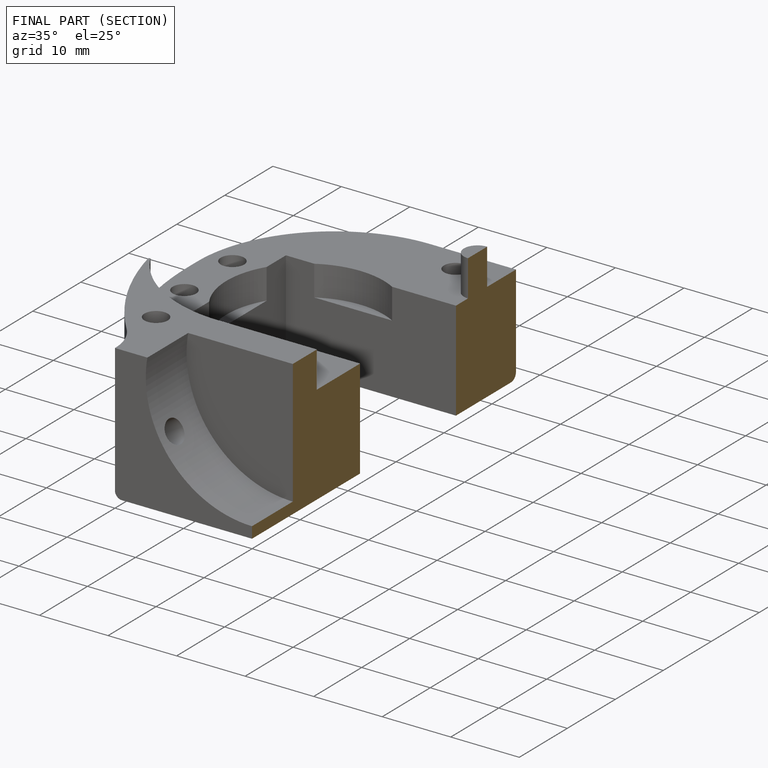
[diagram: finished part — half-section view (interior)]
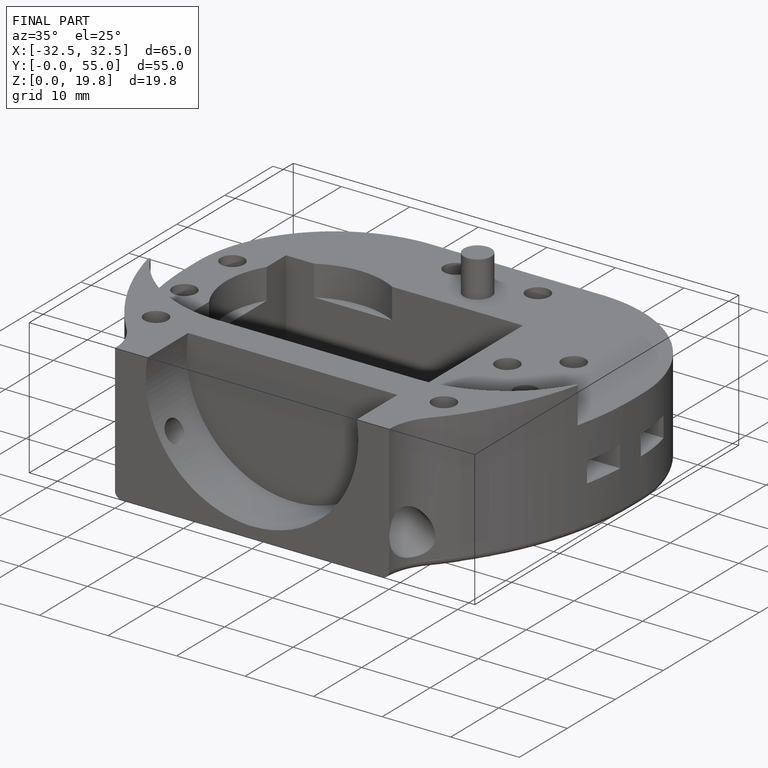
[diagram: finished part — iso view with bounding-box wireframe]
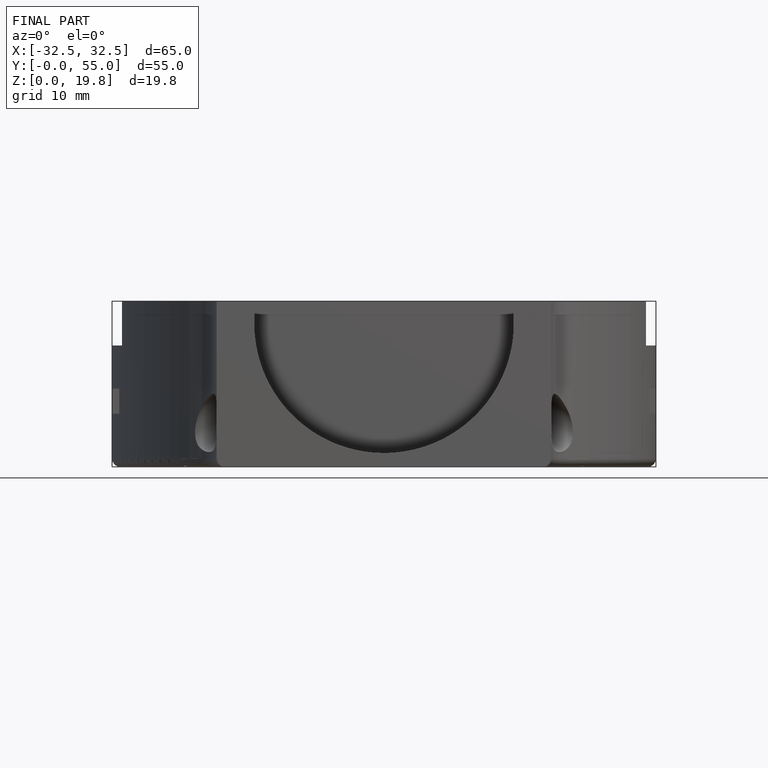
[diagram: finished part — front view with bounding-box wireframe]
